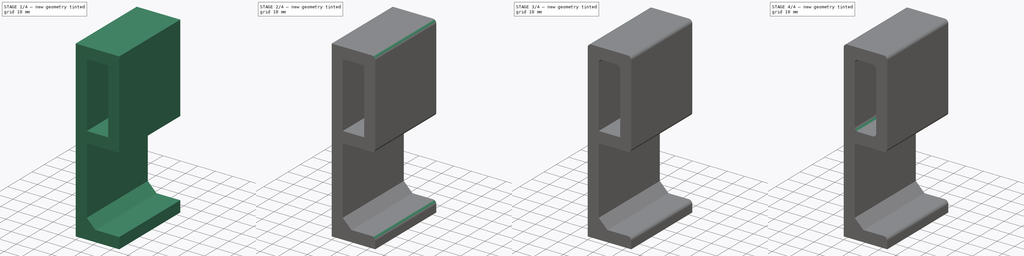
[diagram: build sequence overview — one tinted view per stage of 4, left to right]
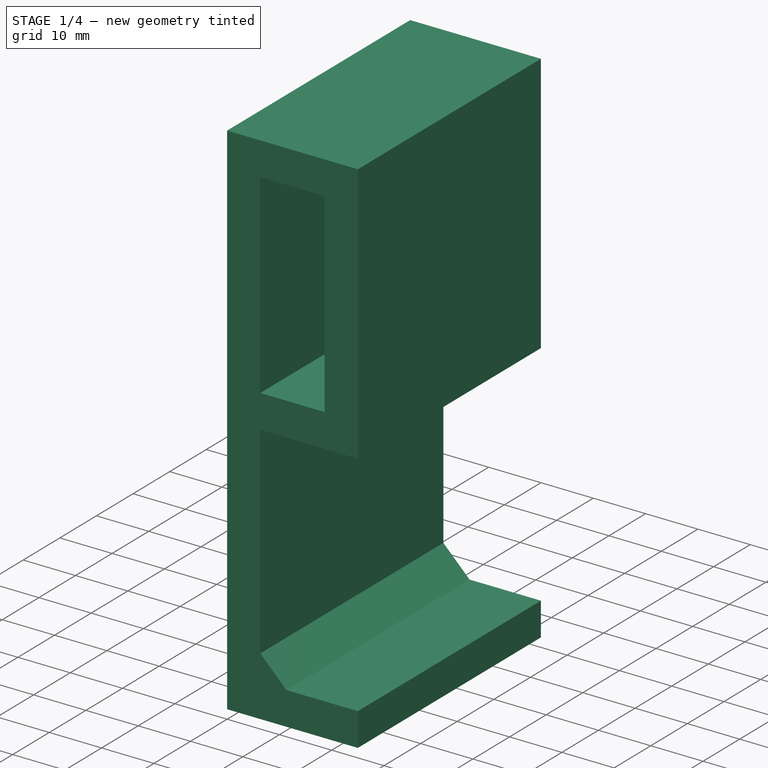
[diagram: stage 1 of 4 — iso view after this stage's code; geometry added in this stage tinted green]
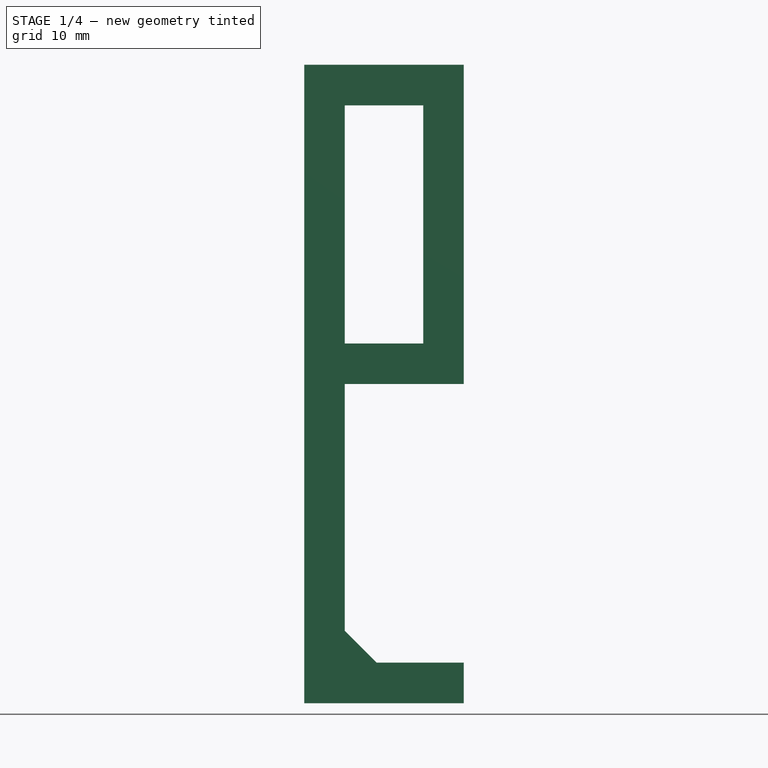
[diagram: stage 1 of 4 — front view after this stage's code; geometry added in this stage tinted green]
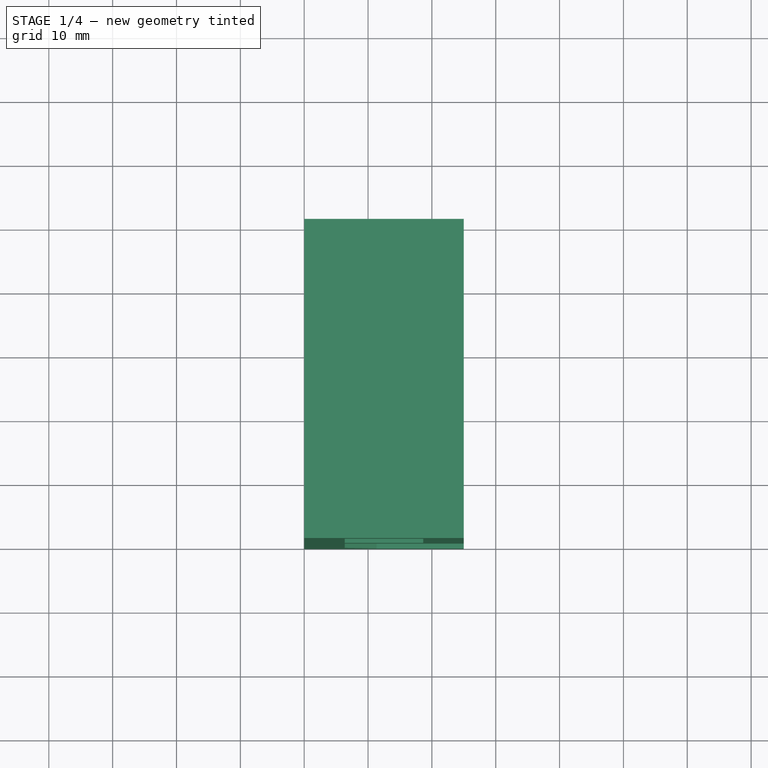
[diagram: stage 1 of 4 — top view after this stage's code; geometry added in this stage tinted green]
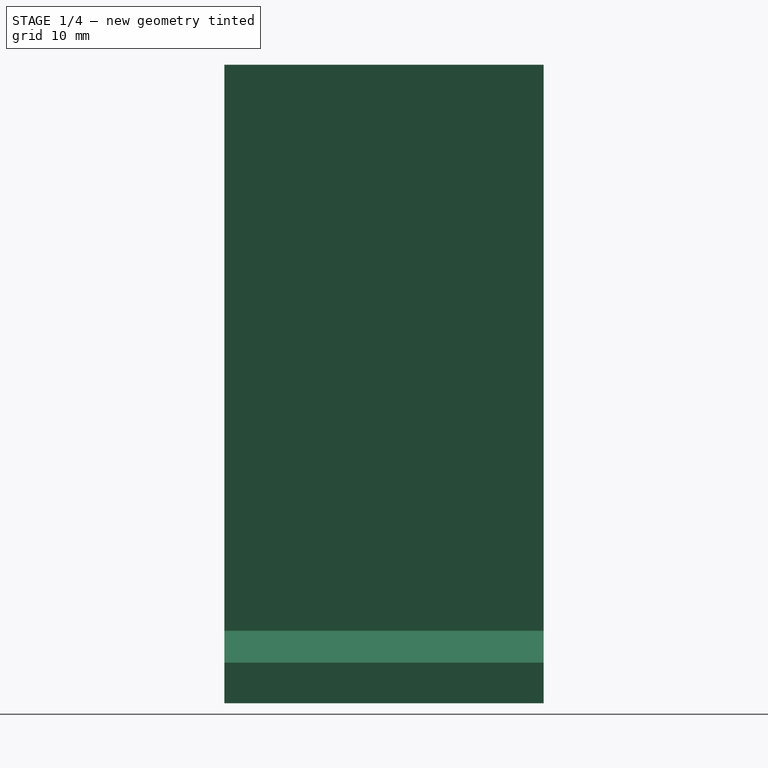
[diagram: stage 1 of 4 — right view after this stage's code; geometry added in this stage tinted green]
FCSTD DOCUMENT  (FreeCAD 1.0R39285 (Git))
Label: XCaliBed
License: All rights reserved
objects: PartDesign::Fillet×8, Sketcher::SketchObject×1, Spreadsheet::Sheet×1, PartDesign::SubShapeBinder×1, PartDesign::Pad×1, PartDesign::Chamfer×1, PartDesign::Body×1
note: 34 computed .brp shape members not serialized (recipe doc carries the construction recipe); baked Part::Feature solids carry a one-line shape summary decoded from their .brp

FEATURE [Sketcher::SketchObject] Sketch  label="MasterSketch"
  ArcFitTolerance = 1e-06
  AttachmentSupport = -> [XZ_Plane]
  FullyConstrained = true
  MakeInternals = false
  MapMode = 5
  Placement = pos=(0,0,0) rot=(1,0,0;1.5708rad)
  expr: Constraints[17] = <<Global>>.wall_thickness
  expr: Constraints[18] = <<Global>>.wall_thickness
  expr: Constraints[19] = <<Global>>.wall_thickness
  expr: Constraints[22] = <<Global>>.wall_thickness
  expr: Constraints[27] = <<Global>>.wall_thickness
  expr: Constraints[30] = <<Global>>.wall_thickness
  expr: Constraints[32] = <<Global>>.bed_height / 2
  expr: Constraints[7] = <<Global>>.bed_height
  expr: Constraints[8] = <<Global>>.gantry_calibration_height
  sketch-geometry (12):
    g0: LineSegment StartX=0 StartY=0 StartZ=0 EndX=25 EndY=0 EndZ=0
    g1: LineSegment StartX=6.35 StartY=50 StartZ=0 EndX=25 EndY=50 EndZ=0
    g2: LineSegment StartX=25 StartY=100 StartZ=0 EndX=0 EndY=100 EndZ=0
    g3: LineSegment StartX=0 StartY=100 StartZ=0 EndX=0 EndY=0 EndZ=0
    g4: LineSegment StartX=18.65 StartY=56.35 StartZ=0 EndX=18.65 EndY=93.65 EndZ=0
    g5: LineSegment StartX=18.65 StartY=93.65 StartZ=0 EndX=6.35 EndY=93.65 EndZ=0
    g6: LineSegment StartX=6.35 StartY=93.65 StartZ=0 EndX=6.35 EndY=56.35 EndZ=0
    g7: LineSegment StartX=6.35 StartY=56.35 StartZ=0 EndX=18.65 EndY=56.35 EndZ=0
    g8: LineSegment StartX=25 StartY=50 StartZ=0 EndX=25 EndY=100 EndZ=0
    g9: LineSegment StartX=6.35 StartY=50 StartZ=0 EndX=6.35 EndY=6.35 EndZ=0
    g10: LineSegment StartX=25 StartY=6.35 StartZ=0 EndX=25 EndY=0 EndZ=0
    g11: LineSegment StartX=25 StartY=6.35 StartZ=0 EndX=6.35 EndY=6.35 EndZ=0
  constraints (35):
    c: Coincident(g-1,g0)
    c: Horizontal(g0)
    c: Horizontal(g1)
    c: PointOnObject(g2,g-2)
    c: Horizontal(g2)
    c: Coincident(g2,g3)
    c: Coincident(g3,g0)
    c: DistanceY(g0,g1) = 50
    c: Distance(g0,g2) = 100
    c: Coincident(g4,g5)
    c: Coincident(g5,g6)
    c: Coincident(g6,g7)
    c: Coincident(g7,g4)
    c: Vertical(g4)
    c: Vertical(g6)
    c: Horizontal(g5)
    c: Horizontal(g7)
    c: Distance(g1,g7) = 6.35
    c: Distance(g2,g5) = 6.35
    c: Distance(g3,g6) = 6.35
    c: Coincident(g8,g2)
    c: Vertical(g8)
    c: Distance(g8,g4) = 6.35
    c: Coincident(g1,g9)
    c: Vertical(g9)
    c: Coincident(g10,g0)
    c: Vertical(g10)
    c: Distance(g9,g3) = 6.35
    c: Coincident(g10,g11)
    c: Horizontal(g11)
    c: Distance(g0,g11) = 6.35
    c: Coincident(g9,g11)
    c: DistanceX(g0,g0) = 25
    c: Coincident(g8,g1)
    c: Equal(g2,g0)
FEATURE [Spreadsheet::Sheet] Spreadsheet  label="Global"
  cells = A2='bed_height; B2(bed_height)==50 mm; A3='gantry_calibration_height; B3(gantry_calibration_height)==2 * bed_height; A4='width; B4(width)==0.5 in; A5='wall_thickness; B5(wall_thickness)==0.25 in; A6='length; B6(length)==50 mm; A7='fc_size_small; B7(fc_size_small)==2 mm; A8='fc_size_large; B8(fc_size_large)==5 mm
FEATURE [PartDesign::SubShapeBinder] Binder
  BindCopyOnChange = 0
  BindMode = 0
  ClaimChildren = false
  Context = -> Body [Binder.]
  Fuse = false
  MakeFace = true
  OffsetFill = false
  OffsetIntersection = false
  OffsetJoinType = 0
  OffsetOpenResult = false
  PartialLoad = false
  Refine = true
  Relative = true
  Support = -> [Sketch]
  _Version = 2
FEATURE [PartDesign::Pad] Pad
  Direction = (0,1,0)
  Length = 50
  Length2 = 10
  Profile = -> Binder [Face1]
  Refine = true
  Suppressed = false
  Type = 0
  expr: Length = <<Global>>.length
FEATURE [PartDesign::Chamfer] Chamfer
  Angle = 45
  Base = -> Pad [Edge20]
  BaseFeature = -> Pad
  ChamferType = 0
  FlipDirection = false
  Refine = true
  Size = 5
  Size2 = 1
  SupportTransform = false
  Suppressed = false
  UseAllEdges = false
  expr: Size = <<Global>>.fc_size_large
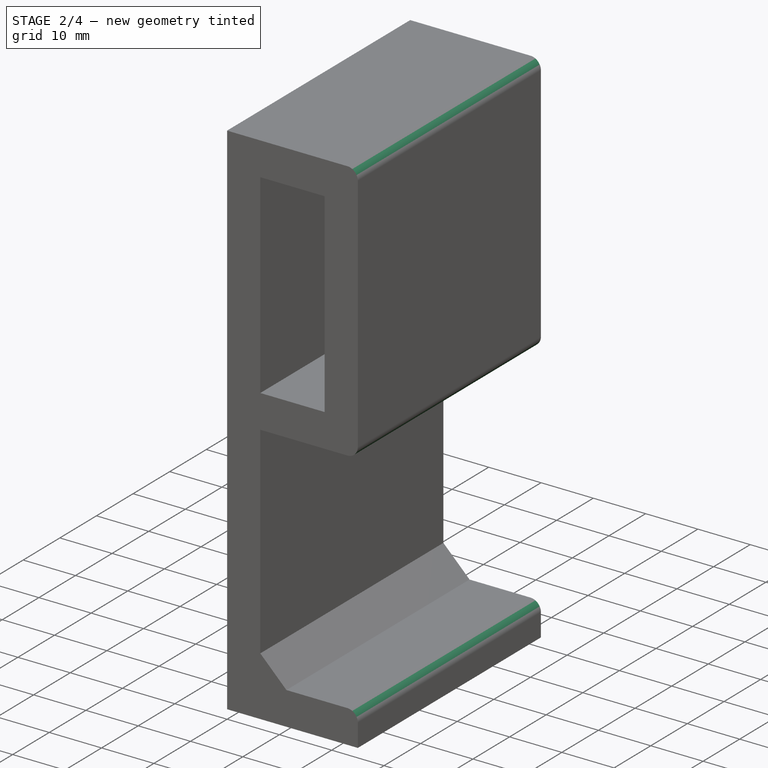
[diagram: stage 2 of 4 — iso view after this stage's code; geometry added in this stage tinted green]
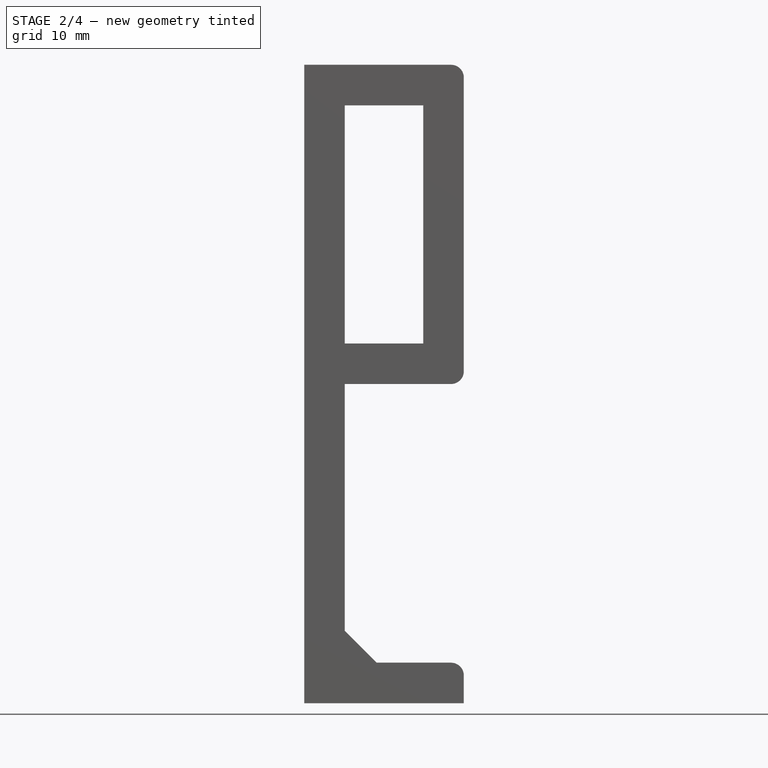
[diagram: stage 2 of 4 — front view after this stage's code; geometry added in this stage tinted green]
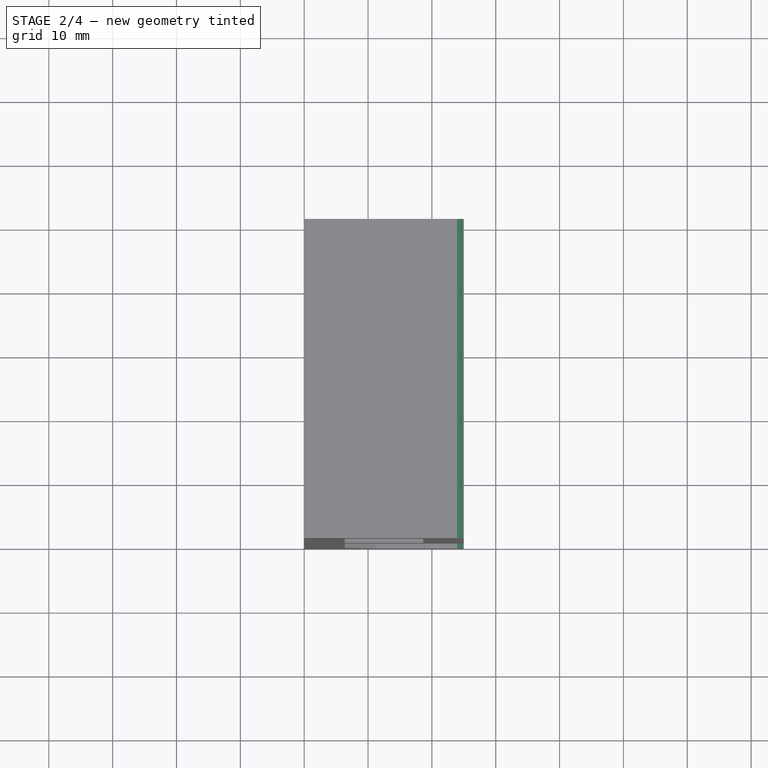
[diagram: stage 2 of 4 — top view after this stage's code; geometry added in this stage tinted green]
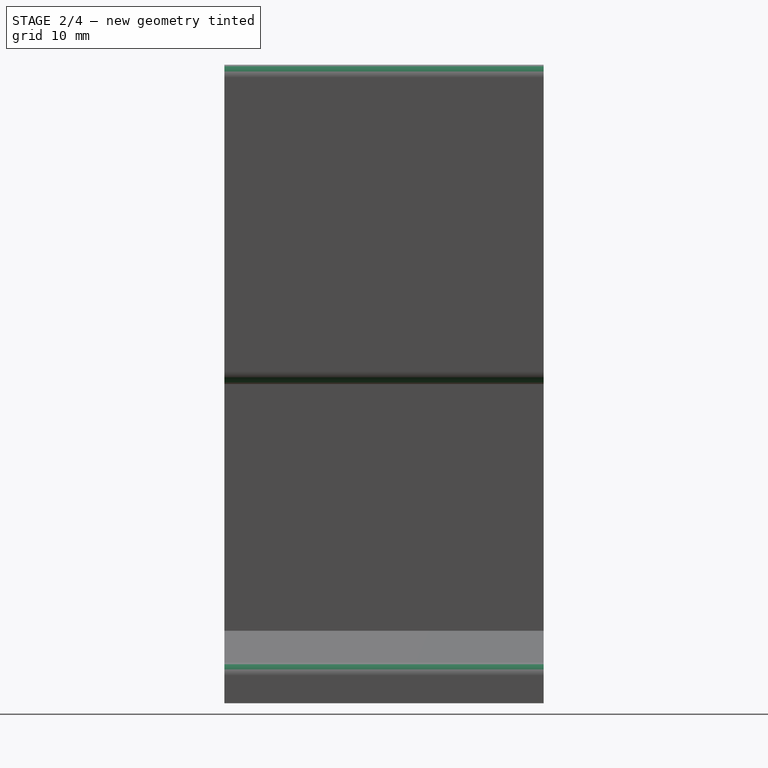
[diagram: stage 2 of 4 — right view after this stage's code; geometry added in this stage tinted green]
FEATURE [PartDesign::Fillet] Fillet
  Base = -> Chamfer [Edge3]
  BaseFeature = -> Chamfer
  Radius = 2
  Refine = true
  SupportTransform = false
  Suppressed = false
  UseAllEdges = false
  expr: Radius = <<Global>>.fc_size_small
FEATURE [PartDesign::Fillet] Fillet001
  Base = -> Fillet [Edge36]
  BaseFeature = -> Fillet
  Radius = 2
  Refine = true
  SupportTransform = false
  Suppressed = false
  UseAllEdges = false
  expr: Radius = <<Global>>.fc_size_small
FEATURE [PartDesign::Fillet] Fillet002
  Base = -> Fillet001 [Edge23]
  BaseFeature = -> Fillet001
  Radius = 2
  Refine = true
  SupportTransform = false
  Suppressed = false
  UseAllEdges = false
  expr: Radius = <<Global>>.fc_size_small
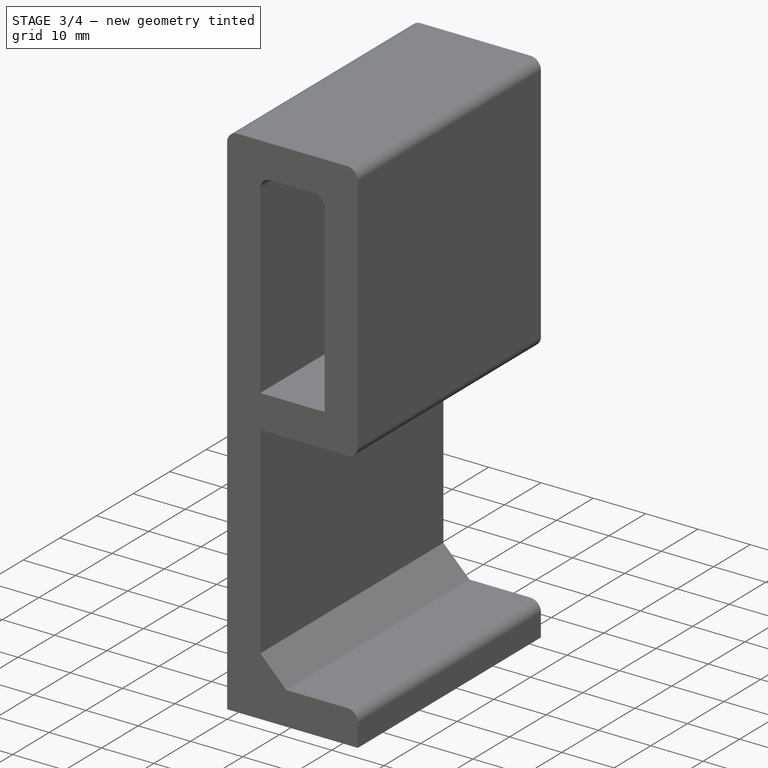
[diagram: stage 3 of 4 — iso view after this stage's code; geometry added in this stage tinted green]
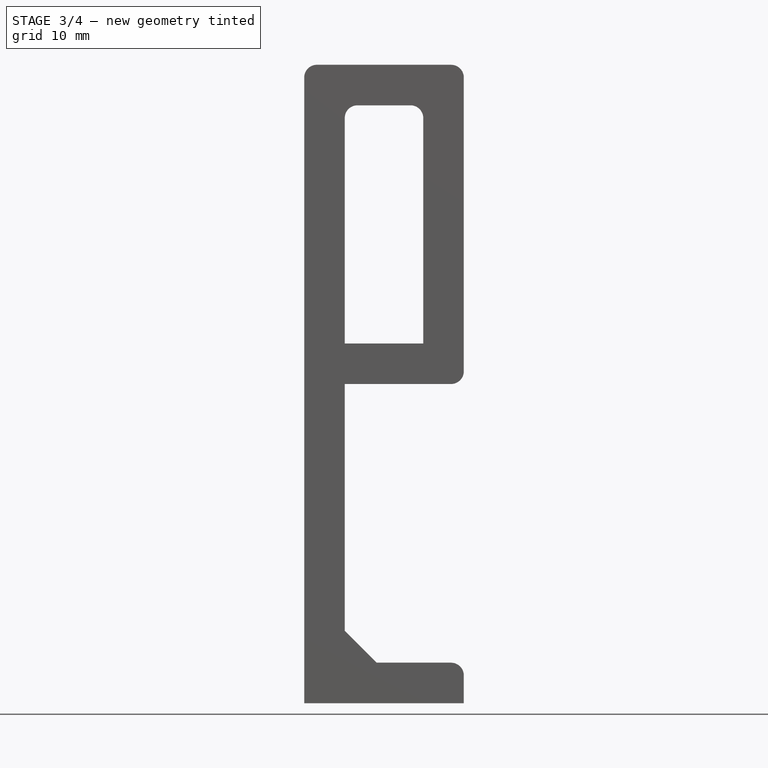
[diagram: stage 3 of 4 — front view after this stage's code; geometry added in this stage tinted green]
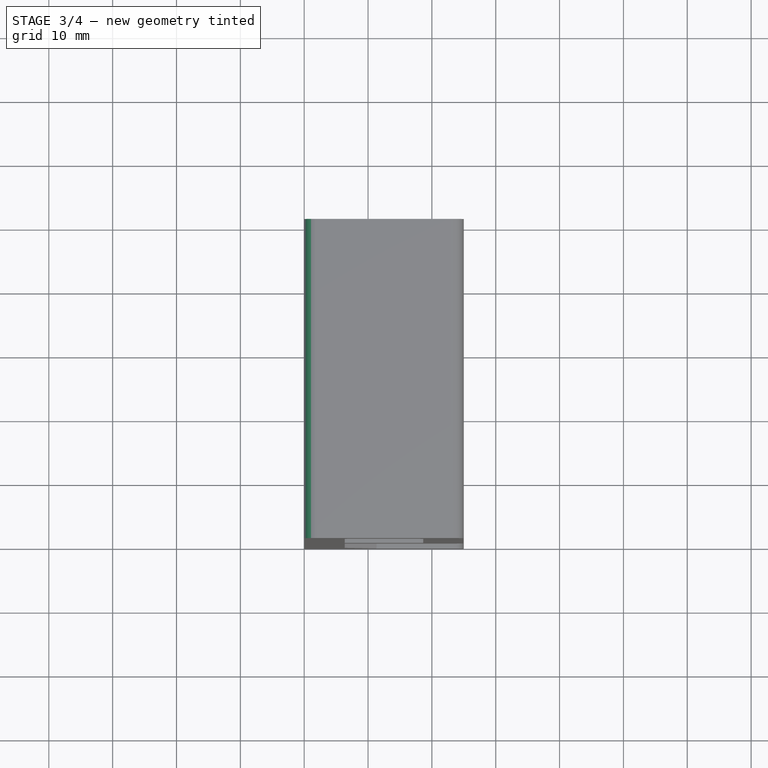
[diagram: stage 3 of 4 — top view after this stage's code; geometry added in this stage tinted green]
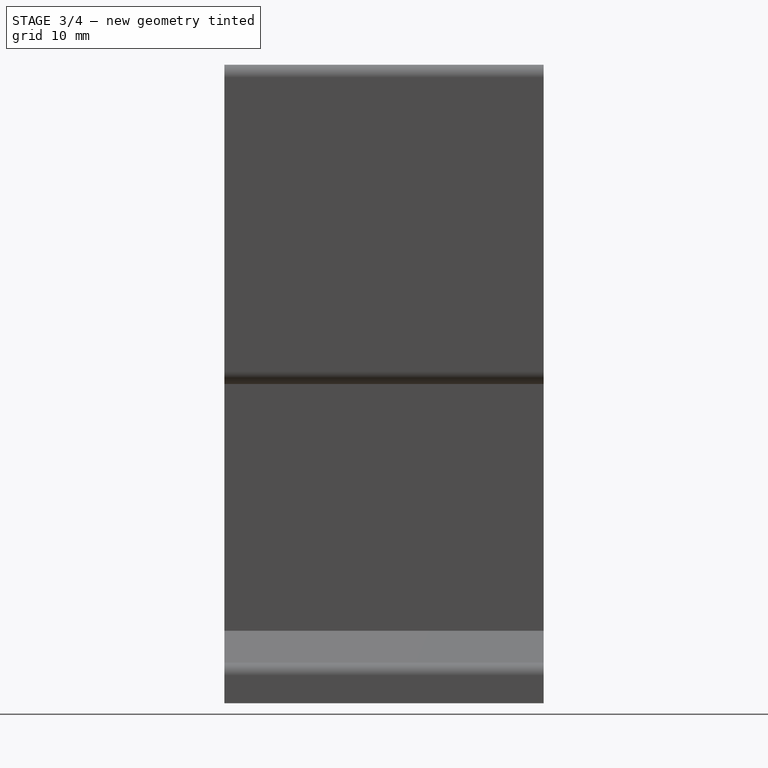
[diagram: stage 3 of 4 — right view after this stage's code; geometry added in this stage tinted green]
FEATURE [PartDesign::Fillet] Fillet003
  Base = -> Fillet002 [Edge24]
  BaseFeature = -> Fillet002
  Radius = 2
  Refine = true
  SupportTransform = false
  Suppressed = false
  UseAllEdges = false
  expr: Radius = <<Global>>.fc_size_small
FEATURE [PartDesign::Fillet] Fillet004
  Base = -> Fillet003 [Edge47]
  BaseFeature = -> Fillet003
  Radius = 2
  Refine = true
  SupportTransform = false
  Suppressed = false
  UseAllEdges = false
  expr: Radius = <<Global>>.fc_size_small
FEATURE [PartDesign::Fillet] Fillet005
  Base = -> Fillet004 [Edge20]
  BaseFeature = -> Fillet004
  Radius = 2
  Refine = true
  SupportTransform = false
  Suppressed = false
  UseAllEdges = false
  expr: Radius = <<Global>>.fc_size_small
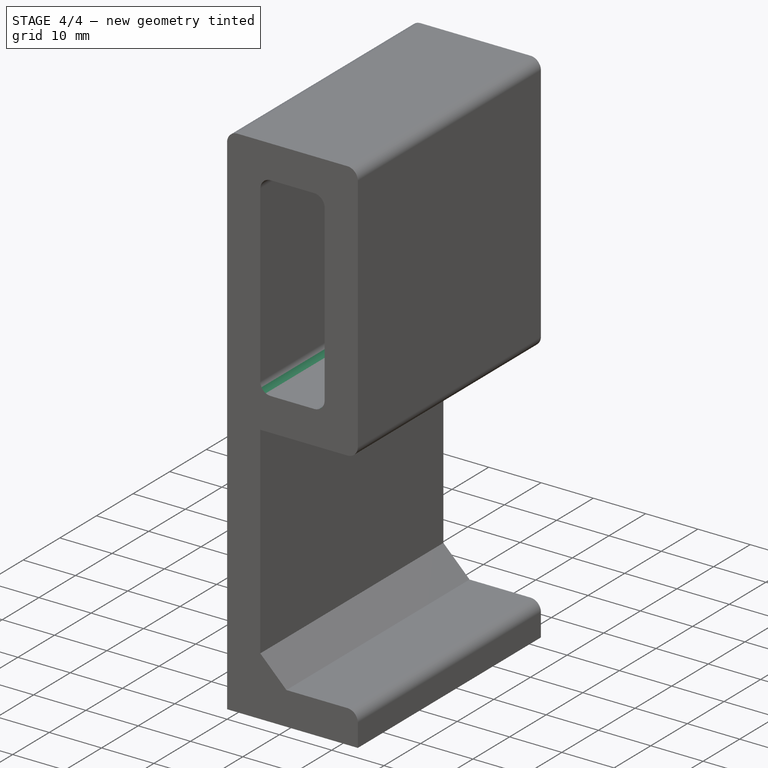
[diagram: stage 4 of 4 — iso view after this stage's code; geometry added in this stage tinted green]
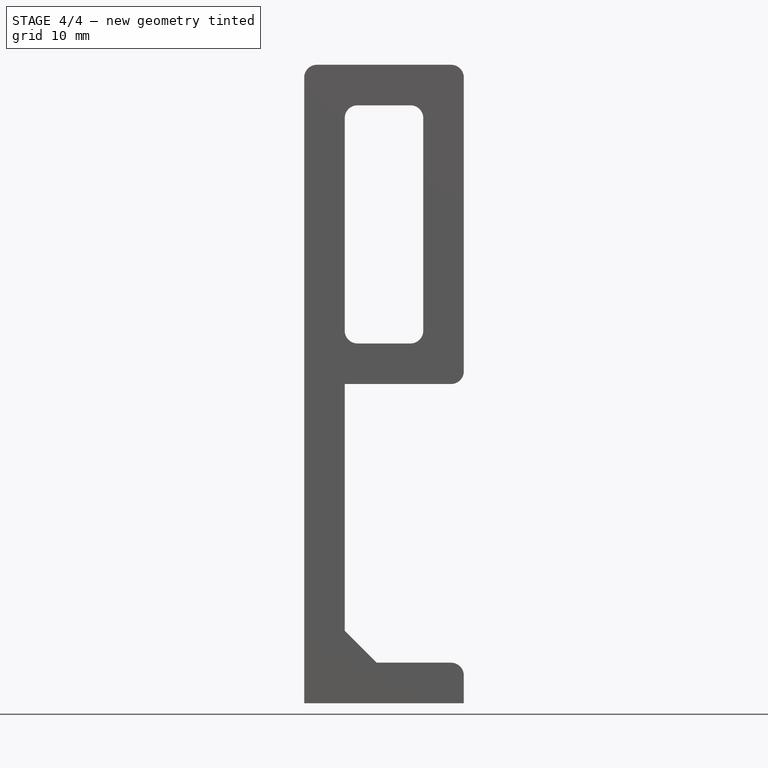
[diagram: stage 4 of 4 — front view after this stage's code; geometry added in this stage tinted green]
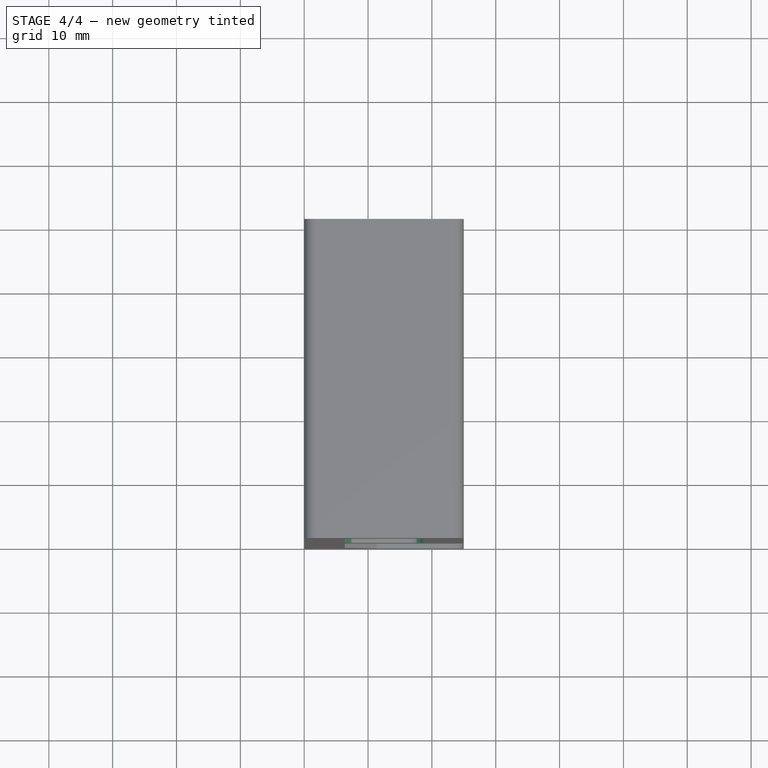
[diagram: stage 4 of 4 — top view after this stage's code; geometry added in this stage tinted green]
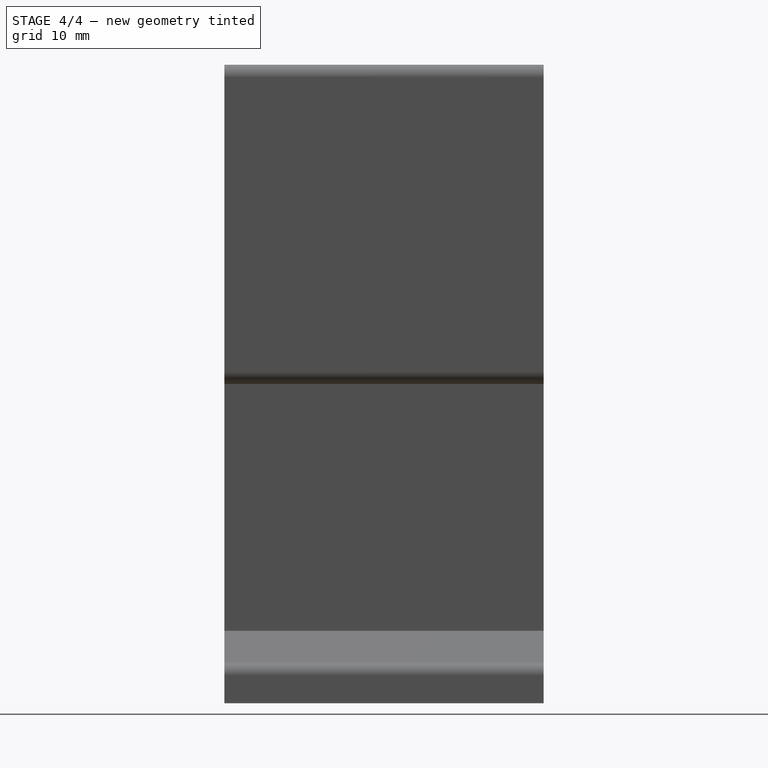
[diagram: stage 4 of 4 — right view after this stage's code; geometry added in this stage tinted green]
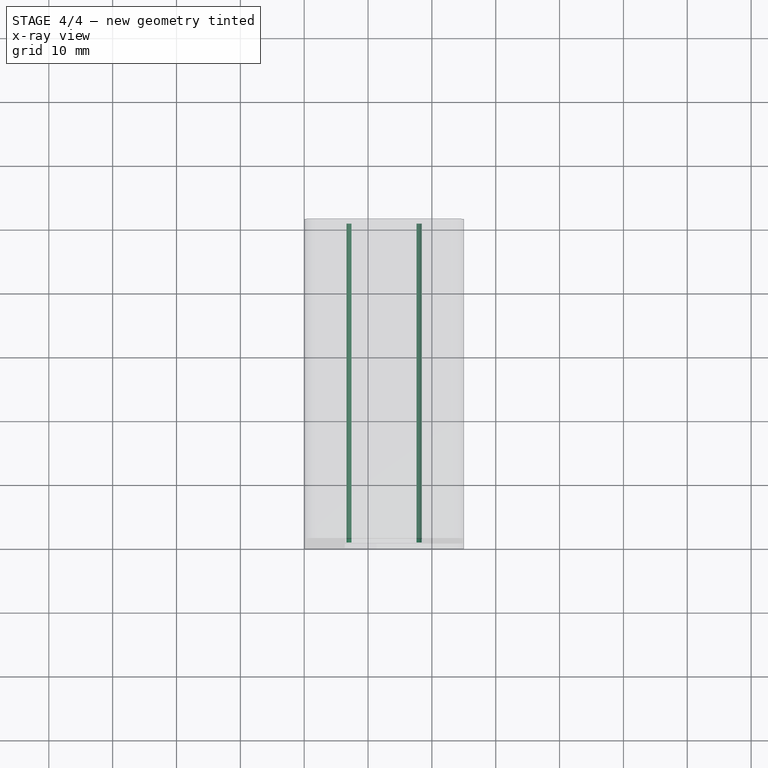
[diagram: stage 4 of 4 — x-ray composite at the top view; earlier geometry ghosted, this stage's added geometry solid]
FEATURE [PartDesign::Fillet] Fillet006
  Base = -> Fillet005 [Edge29]
  BaseFeature = -> Fillet005
  Radius = 2
  Refine = true
  SupportTransform = false
  Suppressed = false
  UseAllEdges = false
  expr: Radius = <<Global>>.fc_size_small
FEATURE [PartDesign::Fillet] Fillet007
  Base = -> Fillet006 [Edge28]
  BaseFeature = -> Fillet006
  Radius = 2
  Refine = true
  SupportTransform = false
  Suppressed = false
  UseAllEdges = false
  expr: Radius = <<Global>>.fc_size_small
FEATURE [PartDesign::Body] Body
  AllowCompound = false
  Group = -> [Sketch,Binder,Pad,Chamfer,Fillet,Fillet001,Fillet002,Fillet003,Fillet004,Fillet005,Fillet006,Fillet007]
  Origin = -> Origin
  Tip = -> Fillet007
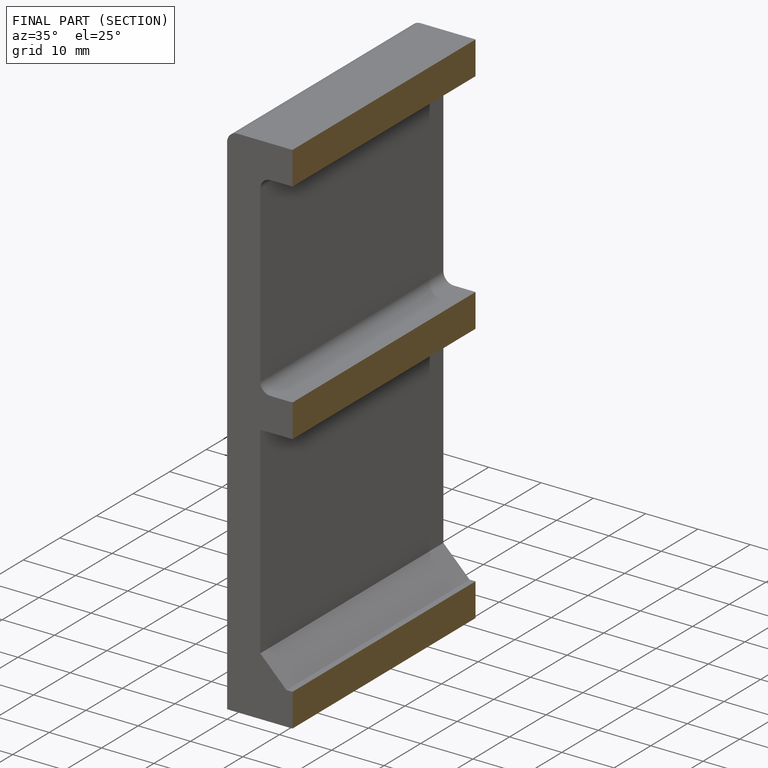
[diagram: finished part — half-section view (interior)]
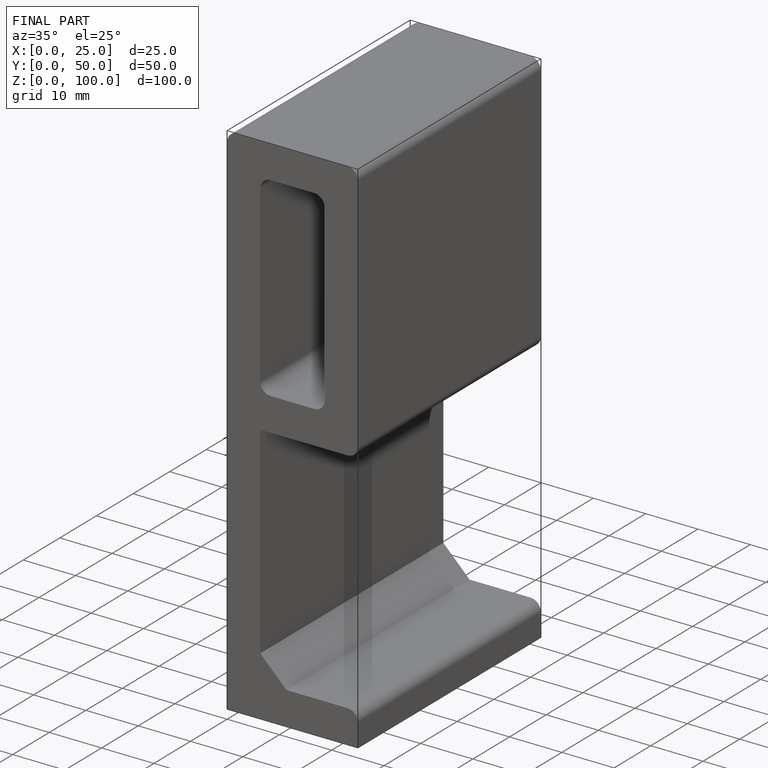
[diagram: finished part — iso view with bounding-box wireframe]
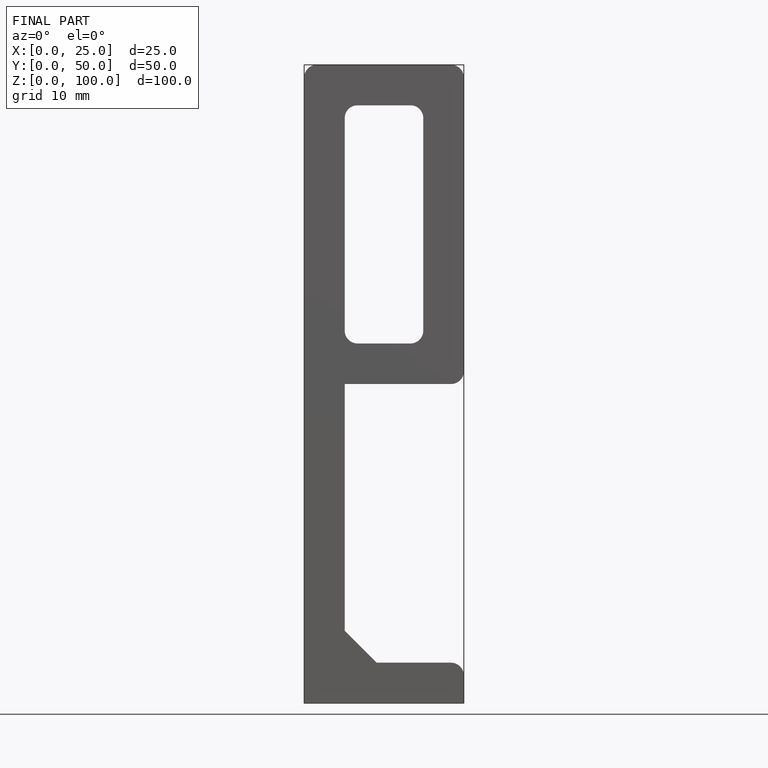
[diagram: finished part — front view with bounding-box wireframe]
